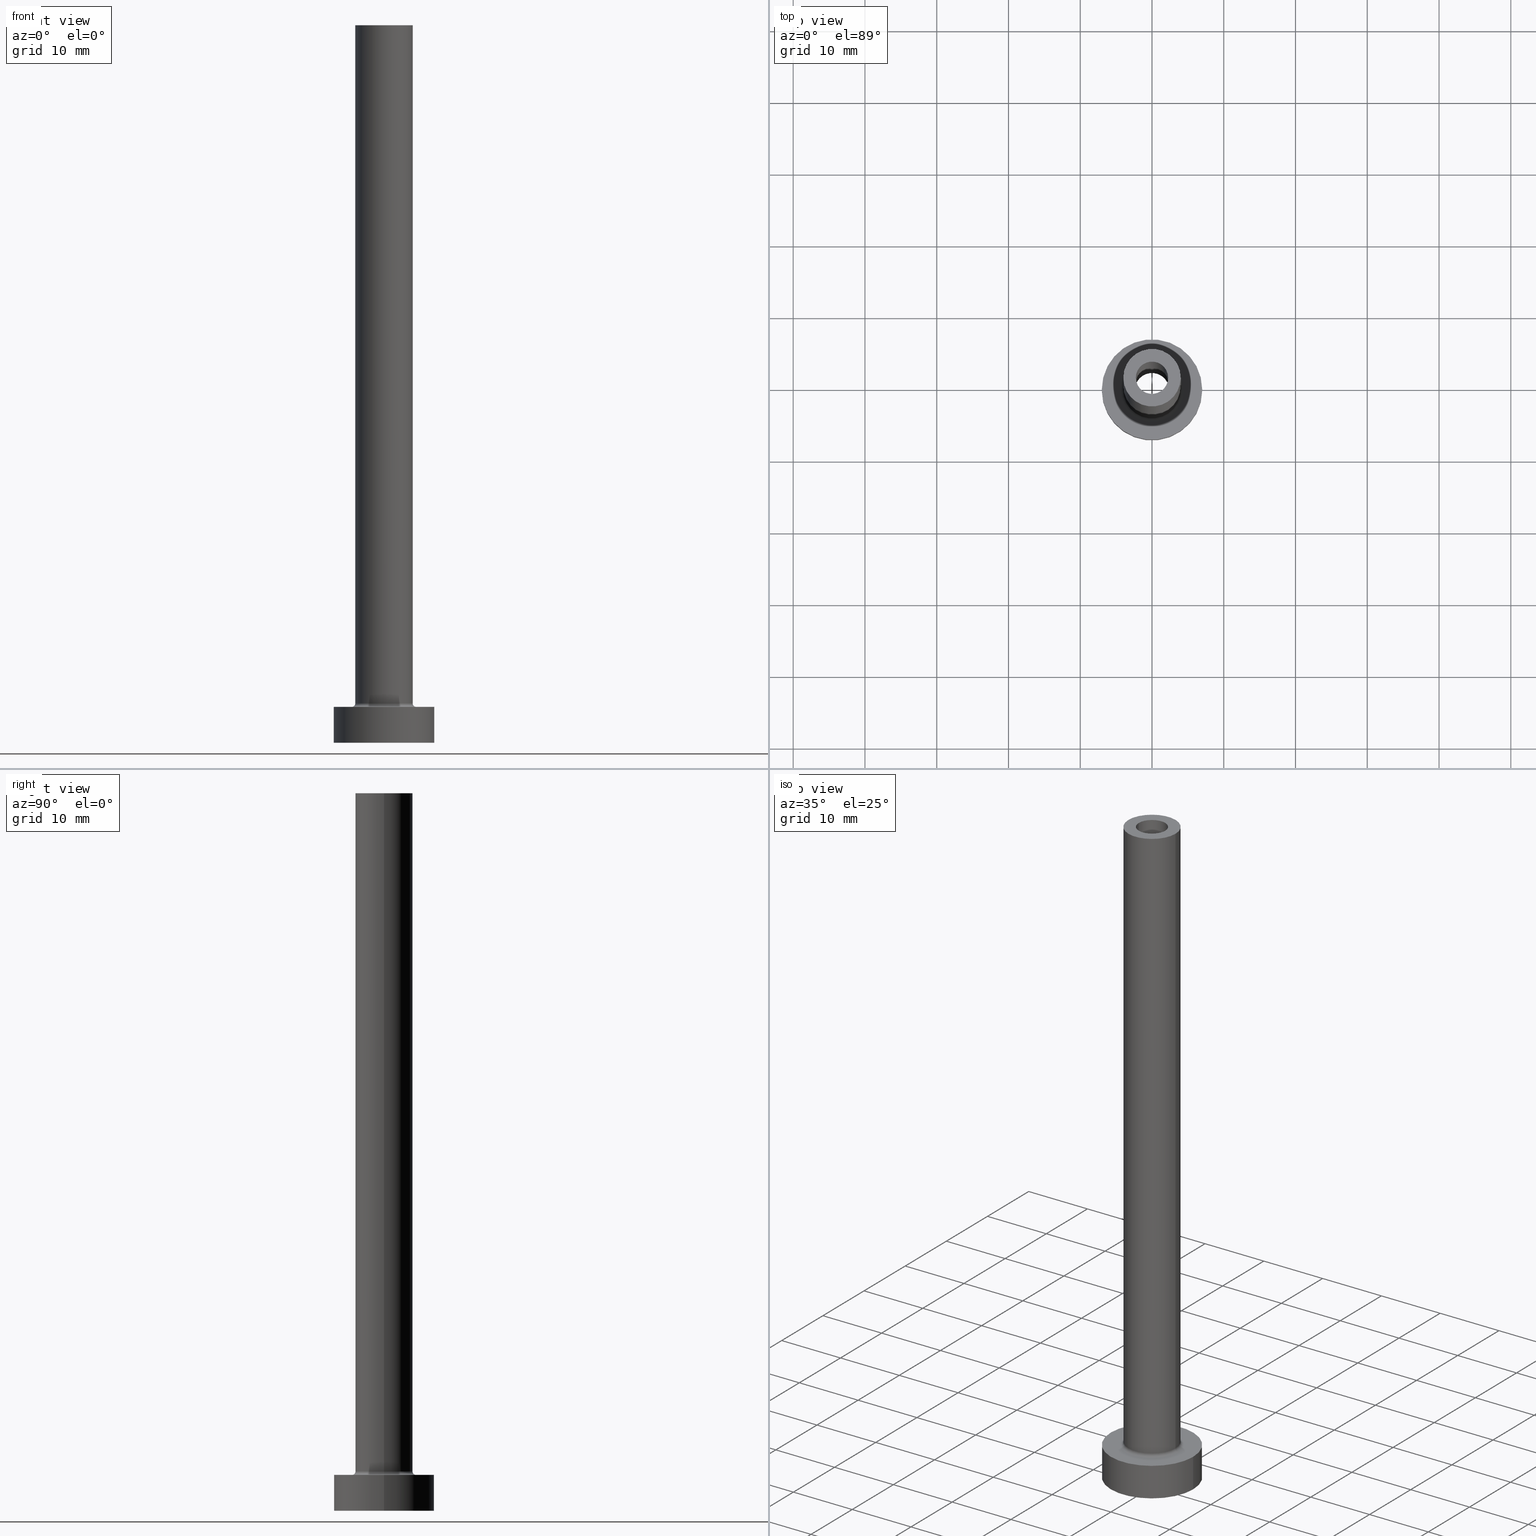
[diagram: canonical four-view strip — front | top / right | iso, engineering-drawing reading convention]
A machine part, canonical four-view strip (front | top / right | iso — engineering-drawing reading convention). The complete STEP part file that produces these views, byte-faithful:
ISO-10303-21;
HEADER;
FILE_DESCRIPTION (( 'STEP AP203' ),
    '1' );
FILE_NAME ('6084.STEP',
    '2023-02-13T17:24:05',
    ( '' ),
    ( '' ),
    'SwSTEP 2.0',
    'SolidWorks 2019',
    '' );
FILE_SCHEMA (( 'CONFIG_CONTROL_DESIGN' ));
ENDSEC;

DATA;
#1 = PLANE ( 'NONE',  #197 ) ;
#2 = DIRECTION ( 'NONE',  ( 0.000000000000000000, 0.000000000000000000, 1.000000000000000000 ) ) ;
#3 = FACE_BOUND ( 'NONE', #61, .T. ) ;
#4 = CARTESIAN_POINT ( 'NONE',  ( 0.000000000000000000, 0.000000000000000000, 100.0000000000000000 ) ) ;
#5 = DIRECTION ( 'NONE',  ( -0.000000000000000000, -0.000000000000000000, -1.000000000000000000 ) ) ;
#6 = APPROVAL_ROLE ( '' ) ;
#7 = APPLICATION_PROTOCOL_DEFINITION ( 'international standard', 'config_control_design', 1994, #259 ) ;
#8 = APPROVAL ( #133, 'NEUR�EN�' ) ;
#9 = CARTESIAN_POINT ( 'NONE',  ( 0.000000000000000000, 0.000000000000000000, 55.00000000000000711 ) ) ;
#10 = AXIS2_PLACEMENT_3D ( 'NONE', #457, #383, #198 ) ;
#11 = VECTOR ( 'NONE', #454, 1000.000000000000000 ) ;
#12 = ADVANCED_FACE ( 'NONE', ( #3, #170 ), #451, .T. ) ;
#13 = CALENDAR_DATE ( 2023, 13, 2 ) ;
#14 = CIRCLE ( 'NONE', #376, 0.5000000000000004441 ) ;
#15 = ORIENTED_EDGE ( 'NONE', *, *, #270, .F. ) ;
#16 = ORIENTED_EDGE ( 'NONE', *, *, #230, .T. ) ;
#17 = CARTESIAN_POINT ( 'NONE',  ( 4.500000000000000888, 0.000000000000000000, 5.000000000000002665 ) ) ;
#18 = CARTESIAN_POINT ( 'NONE',  ( 0.000000000000000000, 0.000000000000000000, 5.000000000000000000 ) ) ;
#19 = AXIS2_PLACEMENT_3D ( 'NONE', #378, #242, #78 ) ;
#20 = LINE ( 'NONE', #180, #359 ) ;
#21 = ORIENTED_EDGE ( 'NONE', *, *, #231, .F. ) ;
#22 = EDGE_LOOP ( 'NONE', ( #165, #113, #72, #306 ) ) ;
#23 = ORIENTED_EDGE ( 'NONE', *, *, #344, .F. ) ;
#24 = EDGE_CURVE ( 'NONE', #118, #77, #58, .T. ) ;
#25 = CIRCLE ( 'NONE', #390, 2.250000000000000000 ) ;
#26 = ORIENTED_EDGE ( 'NONE', *, *, #371, .T. ) ;
#27 = VECTOR ( 'NONE', #5, 1000.000000000000000 ) ;
#28 = FACE_OUTER_BOUND ( 'NONE', #366, .T. ) ;
#29 = CARTESIAN_POINT ( 'NONE',  ( 2.399999999999999911, 2.939152317953647106E-16, 0.000000000000000000 ) ) ;
#30 = CIRCLE ( 'NONE', #241, 2.399999999999999911 ) ;
#31 = ORIENTED_EDGE ( 'NONE', *, *, #45, .F. ) ;
#32 = CARTESIAN_POINT ( 'NONE',  ( 0.000000000000000000, 0.000000000000000000, 5.000000000000000000 ) ) ;
#33 = CARTESIAN_POINT ( 'NONE',  ( 2.399999999999999911, 2.939152317953647106E-16, 55.00000000000000711 ) ) ;
#34 = PERSON_AND_ORGANIZATION ( #37, #52 ) ;
#35 = ADVANCED_FACE ( 'NONE', ( #46, #261 ), #326, .F. ) ;
#36 =( LENGTH_UNIT ( ) NAMED_UNIT ( * ) SI_UNIT ( .MILLI., .METRE. ) );
#37 = PERSON ( 'NEUR�EN�', 'NEUR�EN�', 'NEUR�EN�', ('NEUR�EN�'), ('NEUR�EN�'), ('NEUR�EN�') ) ;
#38 = CIRCLE ( 'NONE', #278, 7.000000000000000000 ) ;
#39 = DIRECTION ( 'NONE',  ( 0.000000000000000000, 0.000000000000000000, 1.000000000000000000 ) ) ;
#40 = DIRECTION ( 'NONE',  ( -0.000000000000000000, -0.000000000000000000, -1.000000000000000000 ) ) ;
#41 = DIRECTION ( 'NONE',  ( 1.000000000000000000, 0.000000000000000000, 0.000000000000000000 ) ) ;
#42 = VERTEX_POINT ( 'NONE', #186 ) ;
#43 = CARTESIAN_POINT ( 'NONE',  ( 0.000000000000000000, 0.000000000000000000, 5.500000000000005329 ) ) ;
#44 = ORIENTED_EDGE ( 'NONE', *, *, #445, .F. ) ;
#45 = EDGE_CURVE ( 'NONE', #194, #159, #222, .T. ) ;
#46 = FACE_BOUND ( 'NONE', #299, .T. ) ;
#47 = DATE_AND_TIME ( #319, #316 ) ;
#48 = DIRECTION ( 'NONE',  ( 0.000000000000000000, 0.000000000000000000, -1.000000000000000000 ) ) ;
#49 = CYLINDRICAL_SURFACE ( 'NONE', #403, 2.399999999999999911 ) ;
#50 = CARTESIAN_POINT ( 'NONE',  ( -4.000000000000000000, 0.000000000000000000, 5.500000000000005329 ) ) ;
#51 = DIRECTION ( 'NONE',  ( 1.000000000000000000, 0.000000000000000000, 0.000000000000000000 ) ) ;
#52 = ORGANIZATION ( 'NEUR�EN�', 'NEUR�EN�', '' ) ;
#53 = DIRECTION ( 'NONE',  ( 0.000000000000000000, 0.000000000000000000, 1.000000000000000000 ) ) ;
#54 = VERTEX_POINT ( 'NONE', #17 ) ;
#55 = DIRECTION ( 'NONE',  ( -0.000000000000000000, -0.000000000000000000, -1.000000000000000000 ) ) ;
#56 = ORIENTED_EDGE ( 'NONE', *, *, #280, .F. ) ;
#57 = PERSON_AND_ORGANIZATION ( #37, #52 ) ;
#58 = CIRCLE ( 'NONE', #130, 4.000000000000000000 ) ;
#59 = ORIENTED_EDGE ( 'NONE', *, *, #163, .F. ) ;
#60 = ORIENTED_EDGE ( 'NONE', *, *, #144, .T. ) ;
#61 = EDGE_LOOP ( 'NONE', ( #304, #246 ) ) ;
#62 = CIRCLE ( 'NONE', #86, 4.500000000000000888 ) ;
#63 = ORIENTED_EDGE ( 'NONE', *, *, #143, .F. ) ;
#64 = DIRECTION ( 'NONE',  ( 0.000000000000000000, 0.000000000000000000, 1.000000000000000000 ) ) ;
#65 = ADVANCED_FACE ( 'NONE', ( #105 ), #317, .F. ) ;
#66 = EDGE_CURVE ( 'NONE', #237, #82, #185, .T. ) ;
#67 = CALENDAR_DATE ( 2023, 13, 2 ) ;
#68 = ORIENTED_EDGE ( 'NONE', *, *, #134, .T. ) ;
#69 = CIRCLE ( 'NONE', #315, 7.000000000000000000 ) ;
#70 = CC_DESIGN_SECURITY_CLASSIFICATION ( #111, ( #322 ) ) ;
#71 = CARTESIAN_POINT ( 'NONE',  ( 0.000000000000000000, 0.000000000000000000, 100.0000000000000000 ) ) ;
#72 = ORIENTED_EDGE ( 'NONE', *, *, #66, .T. ) ;
#73 = DIRECTION ( 'NONE',  ( -0.000000000000000000, -0.000000000000000000, -1.000000000000000000 ) ) ;
#74 = DIRECTION ( 'NONE',  ( -1.000000000000000000, 0.000000000000000000, 0.000000000000000000 ) ) ;
#75 = CC_DESIGN_APPROVAL ( #203, ( #100 ) ) ;
#76 = DIRECTION ( 'NONE',  ( 0.000000000000000000, 0.000000000000000000, 1.000000000000000000 ) ) ;
#77 = VERTEX_POINT ( 'NONE', #284 ) ;
#78 = DIRECTION ( 'NONE',  ( -1.000000000000000000, 0.000000000000000000, 0.000000000000000000 ) ) ;
#79 = ADVANCED_FACE ( 'NONE', ( #428 ), #49, .F. ) ;
#80 = DIRECTION ( 'NONE',  ( 1.224646799147353207E-16, 1.000000000000000000, -0.000000000000000000 ) ) ;
#81 = DIRECTION ( 'NONE',  ( 0.000000000000000000, 0.000000000000000000, -1.000000000000000000 ) ) ;
#82 = VERTEX_POINT ( 'NONE', #425 ) ;
#83 = CARTESIAN_POINT ( 'NONE',  ( 0.000000000000000000, 0.000000000000000000, 100.0000000000000000 ) ) ;
#84 = LINE ( 'NONE', #355, #307 ) ;
#85 = CARTESIAN_POINT ( 'NONE',  ( 0.000000000000000000, 0.000000000000000000, 0.000000000000000000 ) ) ;
#86 = AXIS2_PLACEMENT_3D ( 'NONE', #32, #73, #387 ) ;
#87 = ORIENTED_EDGE ( 'NONE', *, *, #256, .F. ) ;
#88 = EDGE_CURVE ( 'NONE', #436, #223, #396, .T. ) ;
#89 = EDGE_LOOP ( 'NONE', ( #97, #150, #453, #44 ) ) ;
#90 = DIRECTION ( 'NONE',  ( 1.000000000000000000, 0.000000000000000000, 0.000000000000000000 ) ) ;
#91 = DATE_AND_TIME ( #13, #233 ) ;
#92 = DIRECTION ( 'NONE',  ( -1.000000000000000000, 0.000000000000000000, 0.000000000000000000 ) ) ;
#93 = CALENDAR_DATE ( 2023, 13, 2 ) ;
#94 = MANIFOLD_SOLID_BREP ( 'Odebrat vysunut�m4', #260 ) ;
#95 = CIRCLE ( 'NONE', #290, 2.399999999999999911 ) ;
#96 = ORIENTED_EDGE ( 'NONE', *, *, #371, .F. ) ;
#97 = ORIENTED_EDGE ( 'NONE', *, *, #298, .F. ) ;
#98 = CYLINDRICAL_SURFACE ( 'NONE', #301, 4.000000000000000000 ) ;
#99 = COORDINATED_UNIVERSAL_TIME_OFFSET ( 1, 0, .AHEAD. ) ;
#100 = PRODUCT_DEFINITION ( 'NEZN�M�', '', #322, #458 ) ;
#101 = EDGE_CURVE ( 'NONE', #444, #282, #248, .T. ) ;
#102 = CARTESIAN_POINT ( 'NONE',  ( -7.000000000000000000, 0.000000000000000000, 5.000000000000000000 ) ) ;
#103 = PERSON_AND_ORGANIZATION_ROLE ( 'creator' ) ;
#104 = ORIENTED_EDGE ( 'NONE', *, *, #445, .T. ) ;
#105 = FACE_OUTER_BOUND ( 'NONE', #89, .T. ) ;
#106 = DIRECTION ( 'NONE',  ( 0.000000000000000000, 0.000000000000000000, -1.000000000000000000 ) ) ;
#107 = CARTESIAN_POINT ( 'NONE',  ( 0.000000000000000000, 0.000000000000000000, 0.000000000000000000 ) ) ;
#108 = AXIS2_PLACEMENT_3D ( 'NONE', #156, #2, #429 ) ;
#109 = LINE ( 'NONE', #179, #218 ) ;
#110 = CARTESIAN_POINT ( 'NONE',  ( 2.399999999999999911, 2.939152317953647106E-16, 61.78822509939085705 ) ) ;
#111 = SECURITY_CLASSIFICATION ( '', '', #373 ) ;
#112 = EDGE_CURVE ( 'NONE', #282, #444, #296, .T. ) ;
#113 = ORIENTED_EDGE ( 'NONE', *, *, #230, .F. ) ;
#114 = EDGE_LOOP ( 'NONE', ( #375, #262, #437, #266 ) ) ;
#115 = DIRECTION ( 'NONE',  ( -1.000000000000000000, 0.000000000000000000, 0.000000000000000000 ) ) ;
#116 = CARTESIAN_POINT ( 'NONE',  ( 0.000000000000000000, 0.000000000000000000, 5.500000000000005329 ) ) ;
#117 = PRODUCT ( '6084', '6084', '', ( #286 ) ) ;
#118 = VERTEX_POINT ( 'NONE', #205 ) ;
#119 = AXIS2_PLACEMENT_3D ( 'NONE', #9, #129, #352 ) ;
#120 = ADVANCED_BREP_SHAPE_REPRESENTATION ( '6084', ( #94, #405 ), #132 ) ;
#121 = APPROVAL ( #293, 'NEUR�EN�' ) ;
#122 = DIRECTION ( 'NONE',  ( 1.000000000000000000, 0.000000000000000000, 0.000000000000000000 ) ) ;
#123 = CARTESIAN_POINT ( 'NONE',  ( 4.000000000000000000, 4.898587196589412829E-16, 5.500000000000005329 ) ) ;
#124 = VECTOR ( 'NONE', #273, 1000.000000000000000 ) ;
#125 = DIRECTION ( 'NONE',  ( -0.000000000000000000, -0.000000000000000000, -1.000000000000000000 ) ) ;
#126 = CARTESIAN_POINT ( 'NONE',  ( 0.000000000000000000, 0.000000000000000000, 5.000000000000000000 ) ) ;
#127 = COORDINATED_UNIVERSAL_TIME_OFFSET ( 1, 0, .AHEAD. ) ;
#128 = EDGE_LOOP ( 'NONE', ( #330, #447 ) ) ;
#129 = DIRECTION ( 'NONE',  ( 0.000000000000000000, 0.000000000000000000, 1.000000000000000000 ) ) ;
#130 = AXIS2_PLACEMENT_3D ( 'NONE', #274, #309, #417 ) ;
#131 = EDGE_CURVE ( 'NONE', #77, #194, #20, .T. ) ;
#132 =( GEOMETRIC_REPRESENTATION_CONTEXT ( 3 ) GLOBAL_UNCERTAINTY_ASSIGNED_CONTEXT ( ( #346 ) ) GLOBAL_UNIT_ASSIGNED_CONTEXT ( ( #36, #426, #245 ) ) REPRESENTATION_CONTEXT ( 'NONE', 'WORKASPACE' ) );
#133 = APPROVAL_STATUS ( 'not_yet_approved' ) ;
#134 = EDGE_CURVE ( 'NONE', #77, #118, #416, .T. ) ;
#135 = AXIS2_PLACEMENT_3D ( 'NONE', #430, #55, #275 ) ;
#136 = APPROVAL_PERSON_ORGANIZATION ( #393, #121, #6 ) ;
#137 = ORIENTED_EDGE ( 'NONE', *, *, #452, .F. ) ;
#138 = APPROVAL_DATE_TIME ( #431, #121 ) ;
#139 = CIRCLE ( 'NONE', #225, 2.399999999999999911 ) ;
#140 = CARTESIAN_POINT ( 'NONE',  ( 0.000000000000000000, 0.000000000000000000, 5.000000000000000000 ) ) ;
#141 = CARTESIAN_POINT ( 'NONE',  ( -4.000000000000000000, 0.000000000000000000, 100.0000000000000000 ) ) ;
#142 = FACE_OUTER_BOUND ( 'NONE', #329, .T. ) ;
#143 = EDGE_CURVE ( 'NONE', #167, #54, #207, .T. ) ;
#144 = EDGE_CURVE ( 'NONE', #42, #412, #441, .T. ) ;
#145 = CARTESIAN_POINT ( 'NONE',  ( 0.000000000000000000, 0.000000000000000000, 0.000000000000000000 ) ) ;
#146 = PLANE ( 'NONE',  #432 ) ;
#147 = CYLINDRICAL_SURFACE ( 'NONE', #19, 7.000000000000000000 ) ;
#148 = CC_DESIGN_APPROVAL ( #8, ( #111 ) ) ;
#149 = DIRECTION ( 'NONE',  ( 1.000000000000000000, 0.000000000000000000, 0.000000000000000000 ) ) ;
#150 = ORIENTED_EDGE ( 'NONE', *, *, #101, .T. ) ;
#151 = ORIENTED_EDGE ( 'NONE', *, *, #280, .T. ) ;
#152 = CARTESIAN_POINT ( 'NONE',  ( 2.250000000000000000, 2.755455298081543792E-16, 100.0000000000000000 ) ) ;
#153 = COORDINATED_UNIVERSAL_TIME_OFFSET ( 1, 0, .AHEAD. ) ;
#154 = PERSON_AND_ORGANIZATION ( #37, #52 ) ;
#155 = APPROVAL_PERSON_ORGANIZATION ( #154, #203, #434 ) ;
#156 = CARTESIAN_POINT ( 'NONE',  ( 0.000000000000000000, 0.000000000000000000, 100.0000000000000000 ) ) ;
#157 = CC_DESIGN_PERSON_AND_ORGANIZATION_ASSIGNMENT ( #208, #337, ( #322 ) ) ;
#158 = DIRECTION ( 'NONE',  ( 1.000000000000000000, 0.000000000000000000, 0.000000000000000000 ) ) ;
#159 = VERTEX_POINT ( 'NONE', #50 ) ;
#160 = VERTEX_POINT ( 'NONE', #310 ) ;
#161 = PRODUCT_DEFINITION_SHAPE ( 'NONE', 'NONE',  #100 ) ;
#162 = AXIS2_PLACEMENT_3D ( 'NONE', #116, #76, #343 ) ;
#163 = EDGE_CURVE ( 'NONE', #82, #223, #217, .T. ) ;
#164 = DIRECTION ( 'NONE',  ( 1.000000000000000000, 0.000000000000000000, 0.000000000000000000 ) ) ;
#165 = ORIENTED_EDGE ( 'NONE', *, *, #88, .F. ) ;
#166 = COORDINATED_UNIVERSAL_TIME_OFFSET ( 1, 0, .AHEAD. ) ;
#167 = VERTEX_POINT ( 'NONE', #291 ) ;
#168 = PERSON_AND_ORGANIZATION_ROLE ( 'classification_officer' ) ;
#169 = AXIS2_PLACEMENT_3D ( 'NONE', #238, #314, #279 ) ;
#170 = FACE_OUTER_BOUND ( 'NONE', #277, .T. ) ;
#171 = EDGE_LOOP ( 'NONE', ( #356, #68 ) ) ;
#172 = ORIENTED_EDGE ( 'NONE', *, *, #270, .T. ) ;
#173 = DIRECTION ( 'NONE',  ( -0.000000000000000000, -0.000000000000000000, -1.000000000000000000 ) ) ;
#174 = CIRCLE ( 'NONE', #162, 4.000000000000000000 ) ;
#175 = ADVANCED_FACE ( 'NONE', ( #418 ), #455, .T. ) ;
#176 = EDGE_CURVE ( 'NONE', #223, #82, #69, .T. ) ;
#177 = CARTESIAN_POINT ( 'NONE',  ( 0.000000000000000000, 0.000000000000000000, 5.000000000000000000 ) ) ;
#178 = LINE ( 'NONE', #308, #11 ) ;
#179 = CARTESIAN_POINT ( 'NONE',  ( -2.399999999999999911, 0.000000000000000000, 61.78822509939085705 ) ) ;
#180 = CARTESIAN_POINT ( 'NONE',  ( 4.000000000000000000, 4.898587196589412829E-16, 100.0000000000000000 ) ) ;
#181 = CARTESIAN_POINT ( 'NONE',  ( 2.250000000000000000, 2.755455298081543792E-16, 55.00000000000000711 ) ) ;
#182 = DIRECTION ( 'NONE',  ( -0.000000000000000000, -0.000000000000000000, -1.000000000000000000 ) ) ;
#183 = CIRCLE ( 'NONE', #336, 2.250000000000000000 ) ;
#184 = FACE_BOUND ( 'NONE', #206, .T. ) ;
#185 = LINE ( 'NONE', #395, #27 ) ;
#186 = CARTESIAN_POINT ( 'NONE',  ( -2.399999999999999911, 0.000000000000000000, 55.00000000000000711 ) ) ;
#187 = EDGE_LOOP ( 'NONE', ( #253, #300, #26, #249 ) ) ;
#188 = DIRECTION ( 'NONE',  ( -1.000000000000000000, 0.000000000000000000, 0.000000000000000000 ) ) ;
#189 = PERSON_AND_ORGANIZATION_ROLE ( 'creator' ) ;
#190 = ORIENTED_EDGE ( 'NONE', *, *, #45, .T. ) ;
#191 = EDGE_LOOP ( 'NONE', ( #59, #243 ) ) ;
#192 = VECTOR ( 'NONE', #182, 1000.000000000000000 ) ;
#193 = DIRECTION ( 'NONE',  ( 0.000000000000000000, 0.000000000000000000, 1.000000000000000000 ) ) ;
#194 = VERTEX_POINT ( 'NONE', #123 ) ;
#195 = CARTESIAN_POINT ( 'NONE',  ( 0.000000000000000000, 0.000000000000000000, 61.78822509939085705 ) ) ;
#196 = APPLICATION_CONTEXT ( 'configuration controlled 3d designs of mechanical parts and assemblies' ) ;
#197 = AXIS2_PLACEMENT_3D ( 'NONE', #107, #239, #341 ) ;
#198 = DIRECTION ( 'NONE',  ( 1.000000000000000000, 0.000000000000000000, 0.000000000000000000 ) ) ;
#199 = EDGE_CURVE ( 'NONE', #436, #237, #294, .T. ) ;
#200 = ORIENTED_EDGE ( 'NONE', *, *, #176, .T. ) ;
#201 = EDGE_LOOP ( 'NONE', ( #204, #389, #200, #247 ) ) ;
#202 = EDGE_LOOP ( 'NONE', ( #60, #281, #338, #364 ) ) ;
#203 = APPROVAL ( #292, 'NEUR�EN�' ) ;
#204 = ORIENTED_EDGE ( 'NONE', *, *, #199, .F. ) ;
#205 = CARTESIAN_POINT ( 'NONE',  ( -4.000000000000000000, 0.000000000000000000, 100.0000000000000000 ) ) ;
#206 = EDGE_LOOP ( 'NONE', ( #87, #388 ) ) ;
#207 = CIRCLE ( 'NONE', #460, 4.500000000000000888 ) ;
#208 = PERSON_AND_ORGANIZATION ( #37, #52 ) ;
#209 = CC_DESIGN_APPROVAL ( #121, ( #322 ) ) ;
#210 = ADVANCED_FACE ( 'NONE', ( #142 ), #372, .F. ) ;
#211 = ORIENTED_EDGE ( 'NONE', *, *, #381, .F. ) ;
#212 = CYLINDRICAL_SURFACE ( 'NONE', #271, 4.000000000000000000 ) ;
#213 = LINE ( 'NONE', #110, #295 ) ;
#214 = EDGE_CURVE ( 'NONE', #42, #340, #109, .T. ) ;
#215 = CARTESIAN_POINT ( 'NONE',  ( 0.000000000000000000, 0.000000000000000000, 0.000000000000000000 ) ) ;
#216 = DIRECTION ( 'NONE',  ( 1.000000000000000000, 0.000000000000000000, -0.000000000000000000 ) ) ;
#217 = CIRCLE ( 'NONE', #10, 7.000000000000000000 ) ;
#218 = VECTOR ( 'NONE', #312, 1000.000000000000000 ) ;
#219 = CARTESIAN_POINT ( 'NONE',  ( -2.250000000000000000, 0.000000000000000000, 100.0000000000000000 ) ) ;
#220 = DIRECTION ( 'NONE',  ( 1.000000000000000000, 0.000000000000000000, 0.000000000000000000 ) ) ;
#221 = EDGE_LOOP ( 'NONE', ( #15, #31, #151, #63 ) ) ;
#222 = CIRCLE ( 'NONE', #374, 4.000000000000000000 ) ;
#223 = VERTEX_POINT ( 'NONE', #433 ) ;
#224 = CARTESIAN_POINT ( 'NONE',  ( 0.000000000000000000, 0.000000000000000000, 61.78822509939085705 ) ) ;
#225 = AXIS2_PLACEMENT_3D ( 'NONE', #145, #173, #384 ) ;
#226 = ORIENTED_EDGE ( 'NONE', *, *, #354, .F. ) ;
#227 = CARTESIAN_POINT ( 'NONE',  ( 0.000000000000000000, 0.000000000000000000, 55.00000000000000711 ) ) ;
#228 = DIRECTION ( 'NONE',  ( 0.000000000000000000, 0.000000000000000000, 1.000000000000000000 ) ) ;
#229 = APPROVAL_DATE_TIME ( #258, #203 ) ;
#230 = EDGE_CURVE ( 'NONE', #237, #436, #38, .T. ) ;
#231 = EDGE_CURVE ( 'NONE', #160, #358, #25, .T. ) ;
#232 = CARTESIAN_POINT ( 'NONE',  ( 0.000000000000000000, 0.000000000000000000, 100.0000000000000000 ) ) ;
#233 = LOCAL_TIME ( 18, 24, 5.000000000000000000, #99 ) ;
#234 = APPROVAL_DATE_TIME ( #91, #8 ) ;
#235 = CIRCLE ( 'NONE', #169, 0.5000000000000004441 ) ;
#236 = CC_DESIGN_PERSON_AND_ORGANIZATION_ASSIGNMENT ( #407, #103, ( #322 ) ) ;
#237 = VERTEX_POINT ( 'NONE', #102 ) ;
#238 = CARTESIAN_POINT ( 'NONE',  ( 4.500000000000000888, 0.000000000000000000, 5.500000000000005329 ) ) ;
#239 = DIRECTION ( 'NONE',  ( 0.000000000000000000, 0.000000000000000000, 1.000000000000000000 ) ) ;
#240 = CARTESIAN_POINT ( 'NONE',  ( 0.000000000000000000, 0.000000000000000000, 100.0000000000000000 ) ) ;
#241 = AXIS2_PLACEMENT_3D ( 'NONE', #227, #228, #51 ) ;
#242 = DIRECTION ( 'NONE',  ( -0.000000000000000000, -0.000000000000000000, -1.000000000000000000 ) ) ;
#243 = ORIENTED_EDGE ( 'NONE', *, *, #176, .F. ) ;
#244 = FACE_OUTER_BOUND ( 'NONE', #114, .T. ) ;
#245 =( NAMED_UNIT ( * ) SI_UNIT ( $, .STERADIAN. ) SOLID_ANGLE_UNIT ( ) );
#246 = ORIENTED_EDGE ( 'NONE', *, *, #143, .T. ) ;
#247 = ORIENTED_EDGE ( 'NONE', *, *, #66, .F. ) ;
#248 = CIRCLE ( 'NONE', #442, 2.250000000000000000 ) ;
#249 = ORIENTED_EDGE ( 'NONE', *, *, #381, .T. ) ;
#250 = PERSON_AND_ORGANIZATION ( #37, #52 ) ;
#251 = AXIS2_PLACEMENT_3D ( 'NONE', #71, #342, #339 ) ;
#252 = DIRECTION ( 'NONE',  ( 0.000000000000000000, 0.000000000000000000, 1.000000000000000000 ) ) ;
#253 = ORIENTED_EDGE ( 'NONE', *, *, #131, .F. ) ;
#254 = DATE_TIME_ROLE ( 'creation_date' ) ;
#255 = ADVANCED_FACE ( 'NONE', ( #446 ), #382, .F. ) ;
#256 = EDGE_CURVE ( 'NONE', #340, #289, #139, .T. ) ;
#257 = CARTESIAN_POINT ( 'NONE',  ( 0.000000000000000000, 0.000000000000000000, 100.0000000000000000 ) ) ;
#258 = DATE_AND_TIME ( #93, #265 ) ;
#259 = APPLICATION_CONTEXT ( 'configuration controlled 3d designs of mechanical parts and assemblies' ) ;
#260 = CLOSED_SHELL ( 'NONE', ( #332, #79, #210, #438, #175, #288, #12, #410, #297, #414, #255, #331, #35, #65 ) ) ;
#261 = FACE_OUTER_BOUND ( 'NONE', #369, .T. ) ;
#262 = ORIENTED_EDGE ( 'NONE', *, *, #452, .T. ) ;
#263 = DIRECTION ( 'NONE',  ( 1.000000000000000000, 0.000000000000000000, 0.000000000000000000 ) ) ;
#264 = ORIENTED_EDGE ( 'NONE', *, *, #131, .T. ) ;
#265 = LOCAL_TIME ( 18, 24, 5.000000000000000000, #127 ) ;
#266 = ORIENTED_EDGE ( 'NONE', *, *, #256, .T. ) ;
#267 = EDGE_CURVE ( 'NONE', #412, #289, #213, .T. ) ;
#268 = PERSON_AND_ORGANIZATION ( #37, #52 ) ;
#269 = AXIS2_PLACEMENT_3D ( 'NONE', #257, #351, #188 ) ;
#270 = EDGE_CURVE ( 'NONE', #159, #167, #14, .T. ) ;
#271 = AXIS2_PLACEMENT_3D ( 'NONE', #240, #459, #115 ) ;
#272 = LINE ( 'NONE', #141, #124 ) ;
#273 = DIRECTION ( 'NONE',  ( -0.000000000000000000, -0.000000000000000000, -1.000000000000000000 ) ) ;
#274 = CARTESIAN_POINT ( 'NONE',  ( 0.000000000000000000, 0.000000000000000000, 100.0000000000000000 ) ) ;
#275 = DIRECTION ( 'NONE',  ( -1.000000000000000000, 0.000000000000000000, 0.000000000000000000 ) ) ;
#276 = ORIENTED_EDGE ( 'NONE', *, *, #199, .T. ) ;
#277 = EDGE_LOOP ( 'NONE', ( #16, #276 ) ) ;
#278 = AXIS2_PLACEMENT_3D ( 'NONE', #126, #64, #164 ) ;
#279 = DIRECTION ( 'NONE',  ( 0.000000000000000000, 0.000000000000000000, -1.000000000000000000 ) ) ;
#280 = EDGE_CURVE ( 'NONE', #194, #54, #235, .T. ) ;
#281 = ORIENTED_EDGE ( 'NONE', *, *, #267, .T. ) ;
#282 = VERTEX_POINT ( 'NONE', #219 ) ;
#283 = CARTESIAN_POINT ( 'NONE',  ( 0.000000000000000000, 0.000000000000000000, 55.00000000000000711 ) ) ;
#284 = CARTESIAN_POINT ( 'NONE',  ( 4.000000000000000000, 4.898587196589412829E-16, 100.0000000000000000 ) ) ;
#285 = DIRECTION ( 'NONE',  ( 1.000000000000000000, 0.000000000000000000, 0.000000000000000000 ) ) ;
#286 = MECHANICAL_CONTEXT ( 'NONE', #196, 'mechanical' ) ;
#287 = CALENDAR_DATE ( 2023, 13, 2 ) ;
#288 = ADVANCED_FACE ( 'NONE', ( #448 ), #147, .T. ) ;
#289 = VERTEX_POINT ( 'NONE', #29 ) ;
#290 = AXIS2_PLACEMENT_3D ( 'NONE', #215, #40, #149 ) ;
#291 = CARTESIAN_POINT ( 'NONE',  ( -4.500000000000000888, 5.510910596163088569E-16, 5.000000000000002665 ) ) ;
#292 = APPROVAL_STATUS ( 'not_yet_approved' ) ;
#293 = APPROVAL_STATUS ( 'not_yet_approved' ) ;
#294 = CIRCLE ( 'NONE', #450, 7.000000000000000000 ) ;
#295 = VECTOR ( 'NONE', #106, 1000.000000000000000 ) ;
#296 = CIRCLE ( 'NONE', #108, 2.250000000000000000 ) ;
#297 = ADVANCED_FACE ( 'NONE', ( #380 ), #212, .T. ) ;
#298 = EDGE_CURVE ( 'NONE', #444, #358, #178, .T. ) ;
#299 = EDGE_LOOP ( 'NONE', ( #368, #104 ) ) ;
#300 = ORIENTED_EDGE ( 'NONE', *, *, #24, .F. ) ;
#301 = AXIS2_PLACEMENT_3D ( 'NONE', #4, #125, #92 ) ;
#302 = DIRECTION ( 'NONE',  ( 1.000000000000000000, 0.000000000000000000, 0.000000000000000000 ) ) ;
#303 = DIRECTION ( 'NONE',  ( 1.000000000000000000, 0.000000000000000000, 0.000000000000000000 ) ) ;
#304 = ORIENTED_EDGE ( 'NONE', *, *, #344, .T. ) ;
#305 = CARTESIAN_POINT ( 'NONE',  ( -2.399999999999999911, 0.000000000000000000, 0.000000000000000000 ) ) ;
#306 = ORIENTED_EDGE ( 'NONE', *, *, #163, .T. ) ;
#307 = VECTOR ( 'NONE', #81, 1000.000000000000000 ) ;
#308 = CARTESIAN_POINT ( 'NONE',  ( 2.250000000000000000, 2.755455298081543792E-16, 100.0000000000000000 ) ) ;
#309 = DIRECTION ( 'NONE',  ( 0.000000000000000000, 0.000000000000000000, 1.000000000000000000 ) ) ;
#310 = CARTESIAN_POINT ( 'NONE',  ( -2.250000000000000000, 0.000000000000000000, 55.00000000000000711 ) ) ;
#311 = FACE_BOUND ( 'NONE', #128, .T. ) ;
#312 = DIRECTION ( 'NONE',  ( 0.000000000000000000, 0.000000000000000000, -1.000000000000000000 ) ) ;
#313 = CC_DESIGN_DATE_AND_TIME_ASSIGNMENT ( #47, #254, ( #100 ) ) ;
#314 = DIRECTION ( 'NONE',  ( 0.000000000000000000, -1.000000000000000000, 0.000000000000000000 ) ) ;
#315 = AXIS2_PLACEMENT_3D ( 'NONE', #325, #360, #400 ) ;
#316 = LOCAL_TIME ( 18, 24, 5.000000000000000000, #153 ) ;
#317 = CYLINDRICAL_SURFACE ( 'NONE', #269, 2.250000000000000000 ) ;
#318 = ORIENTED_EDGE ( 'NONE', *, *, #298, .T. ) ;
#319 = CALENDAR_DATE ( 2023, 13, 2 ) ;
#320 = DIRECTION ( 'NONE',  ( -0.000000000000000000, -0.000000000000000000, -1.000000000000000000 ) ) ;
#321 = DIRECTION ( 'NONE',  ( 0.000000000000000000, 0.000000000000000000, 1.000000000000000000 ) ) ;
#322 = PRODUCT_DEFINITION_FORMATION_WITH_SPECIFIED_SOURCE ( 'LIBOVOLN�', '', #117, .NOT_KNOWN. ) ;
#323 = DIRECTION ( 'NONE',  ( 1.000000000000000000, 0.000000000000000000, -0.000000000000000000 ) ) ;
#324 = CARTESIAN_POINT ( 'NONE',  ( 7.000000000000000000, 8.572527594031473190E-16, 5.000000000000000000 ) ) ;
#325 = CARTESIAN_POINT ( 'NONE',  ( 0.000000000000000000, 0.000000000000000000, 0.000000000000000000 ) ) ;
#326 = PLANE ( 'NONE',  #119 ) ;
#327 = EDGE_LOOP ( 'NONE', ( #419, #264, #190, #96 ) ) ;
#328 = CC_DESIGN_DATE_AND_TIME_ASSIGNMENT ( #334, #408, ( #111 ) ) ;
#329 = EDGE_LOOP ( 'NONE', ( #211, #172, #23, #56 ) ) ;
#330 = ORIENTED_EDGE ( 'NONE', *, *, #112, .F. ) ;
#331 = ADVANCED_FACE ( 'NONE', ( #244 ), #385, .F. ) ;
#332 = ADVANCED_FACE ( 'NONE', ( #28 ), #377, .F. ) ;
#333 = AXIS2_PLACEMENT_3D ( 'NONE', #461, #424, #303 ) ;
#334 = DATE_AND_TIME ( #67, #399 ) ;
#335 = CARTESIAN_POINT ( 'NONE',  ( 0.000000000000000000, 0.000000000000000000, 55.00000000000000711 ) ) ;
#336 = AXIS2_PLACEMENT_3D ( 'NONE', #283, #391, #90 ) ;
#337 = PERSON_AND_ORGANIZATION_ROLE ( 'design_supplier' ) ;
#338 = ORIENTED_EDGE ( 'NONE', *, *, #367, .T. ) ;
#339 = DIRECTION ( 'NONE',  ( -1.000000000000000000, 0.000000000000000000, 0.000000000000000000 ) ) ;
#340 = VERTEX_POINT ( 'NONE', #305 ) ;
#341 = DIRECTION ( 'NONE',  ( 1.000000000000000000, 0.000000000000000000, -0.000000000000000000 ) ) ;
#342 = DIRECTION ( 'NONE',  ( 0.000000000000000000, 0.000000000000000000, -1.000000000000000000 ) ) ;
#343 = DIRECTION ( 'NONE',  ( 1.000000000000000000, 0.000000000000000000, 0.000000000000000000 ) ) ;
#344 = EDGE_CURVE ( 'NONE', #54, #167, #62, .T. ) ;
#345 = DIRECTION ( 'NONE',  ( 0.000000000000000000, 0.000000000000000000, 1.000000000000000000 ) ) ;
#346 = UNCERTAINTY_MEASURE_WITH_UNIT (LENGTH_MEASURE( 1.000000000000000082E-05 ), #36, 'distance_accuracy_value', 'NONE');
#347 = CARTESIAN_POINT ( 'NONE',  ( -4.500000000000000888, 5.510910596163089556E-16, 5.500000000000005329 ) ) ;
#348 = APPLICATION_PROTOCOL_DEFINITION ( 'international standard', 'config_control_design', 1994, #196 ) ;
#349 = DIRECTION ( 'NONE',  ( -0.000000000000000000, -0.000000000000000000, -1.000000000000000000 ) ) ;
#350 = DIRECTION ( 'NONE',  ( 0.000000000000000000, 0.000000000000000000, -1.000000000000000000 ) ) ;
#351 = DIRECTION ( 'NONE',  ( 0.000000000000000000, 0.000000000000000000, -1.000000000000000000 ) ) ;
#352 = DIRECTION ( 'NONE',  ( 1.000000000000000000, 0.000000000000000000, -0.000000000000000000 ) ) ;
#353 = AXIS2_PLACEMENT_3D ( 'NONE', #449, #420, #415 ) ;
#354 = EDGE_CURVE ( 'NONE', #282, #160, #84, .T. ) ;
#355 = CARTESIAN_POINT ( 'NONE',  ( -2.250000000000000000, 0.000000000000000000, 100.0000000000000000 ) ) ;
#356 = ORIENTED_EDGE ( 'NONE', *, *, #24, .T. ) ;
#357 = CARTESIAN_POINT ( 'NONE',  ( 0.000000000000000000, 0.000000000000000000, 5.500000000000005329 ) ) ;
#358 = VERTEX_POINT ( 'NONE', #181 ) ;
#359 = VECTOR ( 'NONE', #349, 1000.000000000000000 ) ;
#360 = DIRECTION ( 'NONE',  ( 0.000000000000000000, 0.000000000000000000, 1.000000000000000000 ) ) ;
#361 = DIRECTION ( 'NONE',  ( 0.000000000000000000, 0.000000000000000000, 1.000000000000000000 ) ) ;
#362 = LOCAL_TIME ( 18, 24, 5.000000000000000000, #435 ) ;
#363 = DIRECTION ( 'NONE',  ( -1.000000000000000000, 0.000000000000000000, 0.000000000000000000 ) ) ;
#364 = ORIENTED_EDGE ( 'NONE', *, *, #214, .F. ) ;
#365 = CARTESIAN_POINT ( 'NONE',  ( 0.000000000000000000, 0.000000000000000000, 55.00000000000000711 ) ) ;
#366 = EDGE_LOOP ( 'NONE', ( #394, #318, #21, #226 ) ) ;
#367 = EDGE_CURVE ( 'NONE', #289, #340, #95, .T. ) ;
#368 = ORIENTED_EDGE ( 'NONE', *, *, #231, .T. ) ;
#369 = EDGE_LOOP ( 'NONE', ( #398, #137 ) ) ;
#370 = SHAPE_DEFINITION_REPRESENTATION ( #161, #120 ) ;
#371 = EDGE_CURVE ( 'NONE', #118, #159, #272, .T. ) ;
#372 = TOROIDAL_SURFACE ( 'NONE', #411, 4.500000000000000888, 0.5000000000000000000 ) ;
#373 = SECURITY_CLASSIFICATION_LEVEL ( 'unclassified' ) ;
#374 = AXIS2_PLACEMENT_3D ( 'NONE', #43, #361, #440 ) ;
#375 = ORIENTED_EDGE ( 'NONE', *, *, #267, .F. ) ;
#376 = AXIS2_PLACEMENT_3D ( 'NONE', #347, #80, #423 ) ;
#377 = CYLINDRICAL_SURFACE ( 'NONE', #251, 2.250000000000000000 ) ;
#378 = CARTESIAN_POINT ( 'NONE',  ( 0.000000000000000000, 0.000000000000000000, 5.000000000000000000 ) ) ;
#379 = PRODUCT_RELATED_PRODUCT_CATEGORY ( 'detail', '', ( #117 ) ) ;
#380 = FACE_OUTER_BOUND ( 'NONE', #187, .T. ) ;
#381 = EDGE_CURVE ( 'NONE', #159, #194, #174, .T. ) ;
#382 = TOROIDAL_SURFACE ( 'NONE', #353, 4.500000000000000888, 0.5000000000000000000 ) ;
#383 = DIRECTION ( 'NONE',  ( 0.000000000000000000, 0.000000000000000000, 1.000000000000000000 ) ) ;
#384 = DIRECTION ( 'NONE',  ( 1.000000000000000000, 0.000000000000000000, 0.000000000000000000 ) ) ;
#385 = CYLINDRICAL_SURFACE ( 'NONE', #443, 2.399999999999999911 ) ;
#386 = CARTESIAN_POINT ( 'NONE',  ( 7.000000000000000000, 8.572527594031473190E-16, 5.000000000000000000 ) ) ;
#387 = DIRECTION ( 'NONE',  ( 1.000000000000000000, 0.000000000000000000, 0.000000000000000000 ) ) ;
#388 = ORIENTED_EDGE ( 'NONE', *, *, #367, .F. ) ;
#389 = ORIENTED_EDGE ( 'NONE', *, *, #88, .T. ) ;
#390 = AXIS2_PLACEMENT_3D ( 'NONE', #335, #406, #302 ) ;
#391 = DIRECTION ( 'NONE',  ( 0.000000000000000000, 0.000000000000000000, 1.000000000000000000 ) ) ;
#392 = PERSON_AND_ORGANIZATION_ROLE ( 'design_owner' ) ;
#393 = PERSON_AND_ORGANIZATION ( #37, #52 ) ;
#394 = ORIENTED_EDGE ( 'NONE', *, *, #112, .T. ) ;
#395 = CARTESIAN_POINT ( 'NONE',  ( -7.000000000000000000, 0.000000000000000000, 5.000000000000000000 ) ) ;
#396 = LINE ( 'NONE', #386, #192 ) ;
#397 = CC_DESIGN_PERSON_AND_ORGANIZATION_ASSIGNMENT ( #250, #189, ( #100 ) ) ;
#398 = ORIENTED_EDGE ( 'NONE', *, *, #144, .F. ) ;
#399 = LOCAL_TIME ( 18, 24, 5.000000000000000000, #166 ) ;
#400 = DIRECTION ( 'NONE',  ( 1.000000000000000000, 0.000000000000000000, 0.000000000000000000 ) ) ;
#401 = APPROVAL_ROLE ( '' ) ;
#402 = CC_DESIGN_PERSON_AND_ORGANIZATION_ASSIGNMENT ( #268, #168, ( #111 ) ) ;
#403 = AXIS2_PLACEMENT_3D ( 'NONE', #195, #48, #363 ) ;
#404 = AXIS2_PLACEMENT_3D ( 'NONE', #365, #345, #263 ) ;
#405 = AXIS2_PLACEMENT_3D ( 'NONE', #85, #321, #41 ) ;
#406 = DIRECTION ( 'NONE',  ( 0.000000000000000000, 0.000000000000000000, 1.000000000000000000 ) ) ;
#407 = PERSON_AND_ORGANIZATION ( #37, #52 ) ;
#408 = DATE_TIME_ROLE ( 'classification_date' ) ;
#409 = AXIS2_PLACEMENT_3D ( 'NONE', #140, #413, #216 ) ;
#410 = ADVANCED_FACE ( 'NONE', ( #184, #421 ), #1, .F. ) ;
#411 = AXIS2_PLACEMENT_3D ( 'NONE', #357, #193, #220 ) ;
#412 = VERTEX_POINT ( 'NONE', #33 ) ;
#413 = DIRECTION ( 'NONE',  ( 0.000000000000000000, 0.000000000000000000, 1.000000000000000000 ) ) ;
#414 = ADVANCED_FACE ( 'NONE', ( #311, #456 ), #146, .T. ) ;
#415 = DIRECTION ( 'NONE',  ( 1.000000000000000000, 0.000000000000000000, 0.000000000000000000 ) ) ;
#416 = CIRCLE ( 'NONE', #333, 4.000000000000000000 ) ;
#417 = DIRECTION ( 'NONE',  ( 1.000000000000000000, 0.000000000000000000, 0.000000000000000000 ) ) ;
#418 = FACE_OUTER_BOUND ( 'NONE', #201, .T. ) ;
#419 = ORIENTED_EDGE ( 'NONE', *, *, #134, .F. ) ;
#420 = DIRECTION ( 'NONE',  ( 0.000000000000000000, 0.000000000000000000, 1.000000000000000000 ) ) ;
#421 = FACE_OUTER_BOUND ( 'NONE', #191, .T. ) ;
#422 = APPROVAL_PERSON_ORGANIZATION ( #57, #8, #401 ) ;
#423 = DIRECTION ( 'NONE',  ( -1.000000000000000000, 1.224646799147351482E-16, 0.000000000000000000 ) ) ;
#424 = DIRECTION ( 'NONE',  ( 0.000000000000000000, 0.000000000000000000, 1.000000000000000000 ) ) ;
#425 = CARTESIAN_POINT ( 'NONE',  ( -7.000000000000000000, 0.000000000000000000, 0.000000000000000000 ) ) ;
#426 =( NAMED_UNIT ( * ) PLANE_ANGLE_UNIT ( ) SI_UNIT ( $, .RADIAN. ) );
#427 = FACE_OUTER_BOUND ( 'NONE', #327, .T. ) ;
#428 = FACE_OUTER_BOUND ( 'NONE', #202, .T. ) ;
#429 = DIRECTION ( 'NONE',  ( 1.000000000000000000, 0.000000000000000000, 0.000000000000000000 ) ) ;
#430 = CARTESIAN_POINT ( 'NONE',  ( 0.000000000000000000, 0.000000000000000000, 5.000000000000000000 ) ) ;
#431 = DATE_AND_TIME ( #287, #362 ) ;
#432 = AXIS2_PLACEMENT_3D ( 'NONE', #232, #53, #323 ) ;
#433 = CARTESIAN_POINT ( 'NONE',  ( 7.000000000000000000, 8.572527594031473190E-16, 0.000000000000000000 ) ) ;
#434 = APPROVAL_ROLE ( '' ) ;
#435 = COORDINATED_UNIVERSAL_TIME_OFFSET ( 1, 0, .AHEAD. ) ;
#436 = VERTEX_POINT ( 'NONE', #324 ) ;
#437 = ORIENTED_EDGE ( 'NONE', *, *, #214, .T. ) ;
#438 = ADVANCED_FACE ( 'NONE', ( #427 ), #98, .T. ) ;
#439 = CC_DESIGN_PERSON_AND_ORGANIZATION_ASSIGNMENT ( #34, #392, ( #117 ) ) ;
#440 = DIRECTION ( 'NONE',  ( 1.000000000000000000, 0.000000000000000000, 0.000000000000000000 ) ) ;
#441 = CIRCLE ( 'NONE', #404, 2.399999999999999911 ) ;
#442 = AXIS2_PLACEMENT_3D ( 'NONE', #83, #39, #122 ) ;
#443 = AXIS2_PLACEMENT_3D ( 'NONE', #224, #350, #74 ) ;
#444 = VERTEX_POINT ( 'NONE', #152 ) ;
#445 = EDGE_CURVE ( 'NONE', #358, #160, #183, .T. ) ;
#446 = FACE_OUTER_BOUND ( 'NONE', #221, .T. ) ;
#447 = ORIENTED_EDGE ( 'NONE', *, *, #101, .F. ) ;
#448 = FACE_OUTER_BOUND ( 'NONE', #22, .T. ) ;
#449 = CARTESIAN_POINT ( 'NONE',  ( 0.000000000000000000, 0.000000000000000000, 5.500000000000005329 ) ) ;
#450 = AXIS2_PLACEMENT_3D ( 'NONE', #18, #252, #158 ) ;
#451 = PLANE ( 'NONE',  #409 ) ;
#452 = EDGE_CURVE ( 'NONE', #412, #42, #30, .T. ) ;
#453 = ORIENTED_EDGE ( 'NONE', *, *, #354, .T. ) ;
#454 = DIRECTION ( 'NONE',  ( 0.000000000000000000, 0.000000000000000000, -1.000000000000000000 ) ) ;
#455 = CYLINDRICAL_SURFACE ( 'NONE', #135, 7.000000000000000000 ) ;
#456 = FACE_OUTER_BOUND ( 'NONE', #171, .T. ) ;
#457 = CARTESIAN_POINT ( 'NONE',  ( 0.000000000000000000, 0.000000000000000000, 0.000000000000000000 ) ) ;
#458 = DESIGN_CONTEXT ( 'detailed design', #259, 'design' ) ;
#459 = DIRECTION ( 'NONE',  ( -0.000000000000000000, -0.000000000000000000, -1.000000000000000000 ) ) ;
#460 = AXIS2_PLACEMENT_3D ( 'NONE', #177, #320, #285 ) ;
#461 = CARTESIAN_POINT ( 'NONE',  ( 0.000000000000000000, 0.000000000000000000, 100.0000000000000000 ) ) ;
ENDSEC;
END-ISO-10303-21;
